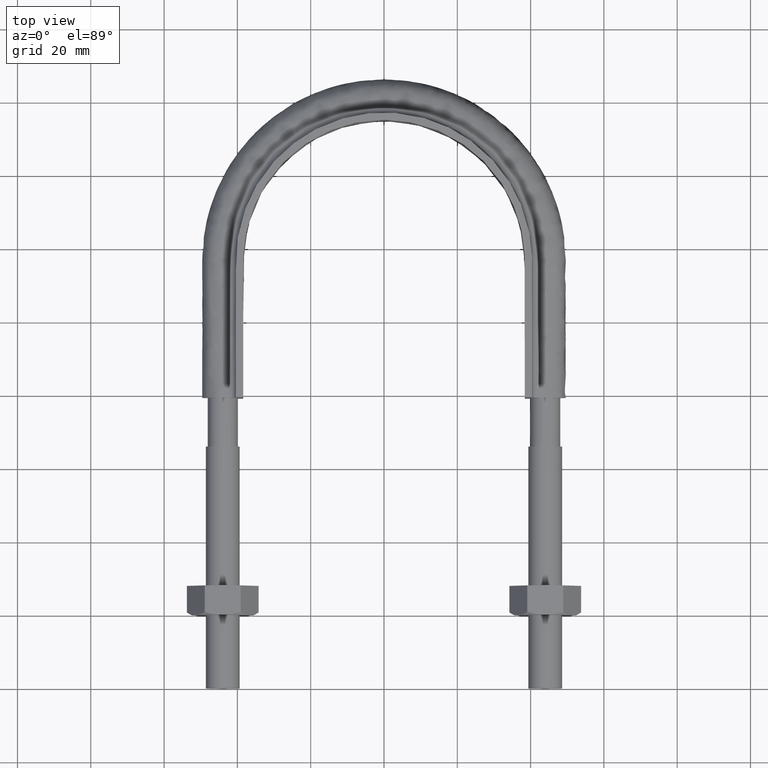
[diagram: clean part render]
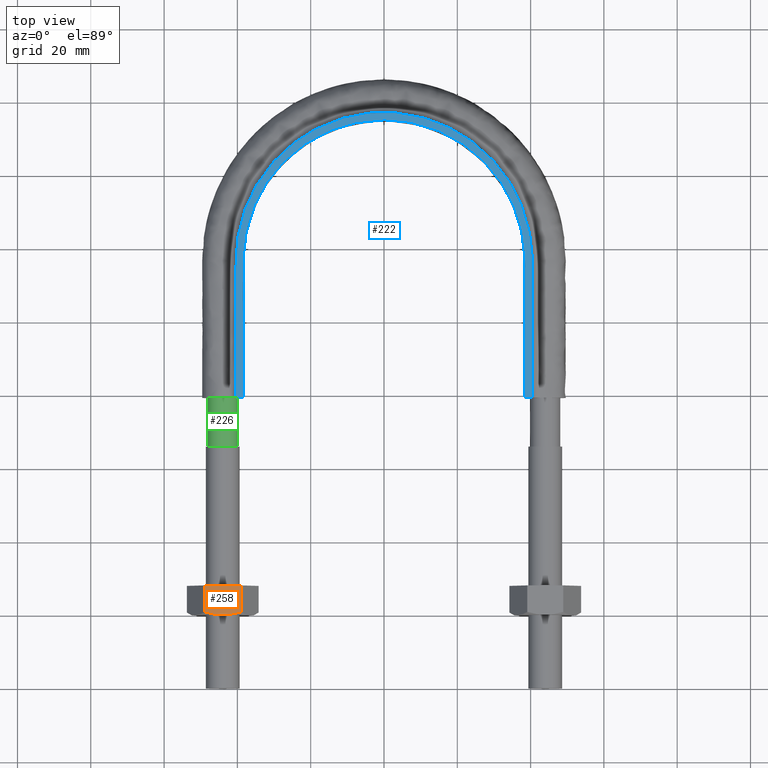
[diagram: same view with three faces highlighted in distinct colors, each labeled with its STEP entity id]
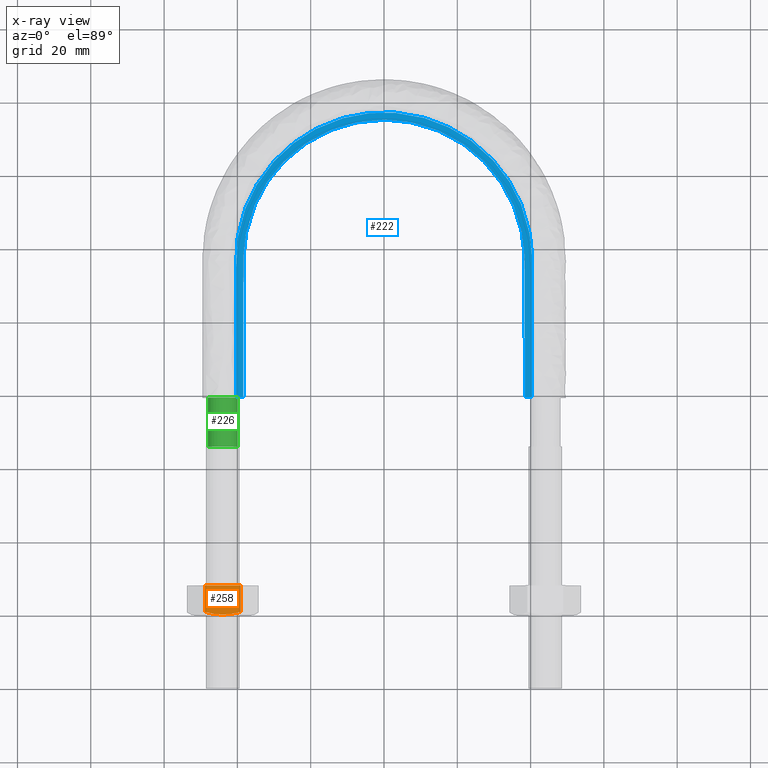
[diagram: x-ray of the same camera — body ghosted, the three highlighted faces saturated]
A machine part, top view with three faces highlighted in distinct colors.
The next image is the same camera in x-ray (body ghosted, the three faces saturated) — at least one of them is partly hidden behind the body in this view.
Their STEP definitions:

[orange] entity #258 — the highlighted planar face has unit normal (0, 0, -1).
#258 = ADVANCED_FACE( '', ( #386 ), #387, .F. );
#386 = FACE_OUTER_BOUND( '', #1383, .T. );
#387 = PLANE( '', #1384 );
#1383 = EDGE_LOOP( '', ( #1735, #1736, #1737, #1738, #1739 ) );
#1384 = AXIS2_PLACEMENT_3D( '', #1740, #1741, #1742 );
#1735 = ORIENTED_EDGE( '', *, *, #2089, .F. );
#1736 = ORIENTED_EDGE( '', *, *, #2084, .F. );
#1737 = ORIENTED_EDGE( '', *, *, #2090, .F. );
#1738 = ORIENTED_EDGE( '', *, *, #2076, .F. );
#1739 = ORIENTED_EDGE( '', *, *, #2091, .F. );
#1740 = CARTESIAN_POINT( '', ( -48.9074772881118, 28.0000000000000, 8.50000000000000 ) );
#1741 = DIRECTION( '', ( 5.55111512312578E-017, 6.12303176911189E-017, -1.00000000000000 ) );
#1742 = DIRECTION( '', ( -1.00000000000000, 2.44921270764475E-016, -5.55111512312578E-017 ) );
#2076 = EDGE_CURVE( '', #2278, #2280, #2281, .T. );
#2084 = EDGE_CURVE( '', #2292, #2241, #2294, .T. );
#2089 = EDGE_CURVE( '', #2241, #2299, #2300, .T. );
#2090 = EDGE_CURVE( '', #2280, #2292, #2301, .F. );
#2091 = EDGE_CURVE( '', #2299, #2278, #2302, .T. );
#2241 = VERTEX_POINT( '', #2762 );
#2278 = VERTEX_POINT( '', #2817 );
#2280 = VERTEX_POINT( '', #2819 );
#2281 = LINE( '', #2820, #2821 );
#2292 = VERTEX_POINT( '', #2842 );
#2294 = B_SPLINE_CURVE_WITH_KNOTS( '', 3, ( #2844, #2845, #2846, #2847, #2848, #2849 ), .UNSPECIFIED., .F., .F., ( 4, 2, 4 ), ( 4.83064900405481E-007, 0.00246777364959070, 0.00493506423428099 ), .UNSPECIFIED. );
#2299 = VERTEX_POINT( '', #2866 );
#2300 = B_SPLINE_CURVE_WITH_KNOTS( '', 3, ( #2867, #2868, #2869, #2870, #2871, #2872, #2873, #2874 ), .UNSPECIFIED., .F., .F., ( 4, 2, 2, 4 ), ( 0.00493506423428099, 0.00616384870526321, 0.00739263317624543, 0.00985020211820988 ), .UNSPECIFIED. );
#2301 = LINE( '', #2875, #2876 );
#2302 = LINE( '', #2877, #2878 );
#2762 = CARTESIAN_POINT( '', ( -44.0000000000000, 20.0000000000000, 8.50000000000000 ) );
#2817 = CARTESIAN_POINT( '', ( -48.8774993593029, 28.0000000000000, 8.50000000000000 ) );
#2819 = CARTESIAN_POINT( '', ( -39.1225006406971, 28.0000000000000, 8.50000000000000 ) );
#2820 = CARTESIAN_POINT( '', ( -39.1000000000000, 28.0000000000000, 8.50000000000000 ) );
#2821 = VECTOR( '', #3203, 1000.00000000000 );
#2842 = CARTESIAN_POINT( '', ( -39.1225006406971, 20.7505553499465, 8.50000000000000 ) );
#2844 = CARTESIAN_POINT( '', ( -39.1225006406971, 20.7505553499465, 8.50000000000000 ) );
#2845 = CARTESIAN_POINT( '', ( -39.9206053692589, 20.5212203171278, 8.50000000000000 ) );
#2846 = CARTESIAN_POINT( '', ( -40.7244743057427, 20.3324525365440, 8.50000000000000 ) );
#2847 = CARTESIAN_POINT( '', ( -42.3487653825441, 20.0714148540586, 8.50000000000000 ) );
#2848 = CARTESIAN_POINT( '', ( -43.1693090167582, 20.0000000000000, 8.50000000000000 ) );
#2849 = CARTESIAN_POINT( '', ( -44.0000000000000, 20.0000000000000, 8.50000000000000 ) );
#2866 = CARTESIAN_POINT( '', ( -48.8774993593029, 20.7505553499465, 8.50000000000000 ) );
#2867 = CARTESIAN_POINT( '', ( -44.0000000000000, 20.0000000000000, 8.50000000000000 ) );
#2868 = CARTESIAN_POINT( '', ( -44.4137089432134, 20.0000000000000, 8.50000000000000 ) );
#2869 = CARTESIAN_POINT( '', ( -44.8294869254275, 20.0177112081764, 8.50000000000000 ) );
#2870 = CARTESIAN_POINT( '', ( -45.6519999770223, 20.0863021936213, 8.50000000000000 ) );
#2871 = CARTESIAN_POINT( '', ( -46.0605223337831, 20.1371116504194, 8.50000000000000 ) );
#2872 = CARTESIAN_POINT( '', ( -47.2788691256670, 20.3331494013913, 8.50000000000000 ) );
#2873 = CARTESIAN_POINT( '', ( -48.0815000650892, 20.5218253127355, 8.49999999999999 ) );
#2874 = CARTESIAN_POINT( '', ( -48.8774993593029, 20.7505553499465, 8.50000000000000 ) );
#2875 = CARTESIAN_POINT( '', ( -39.1225006406971, 28.0000000000000, 8.50000000000000 ) );
#2876 = VECTOR( '', #3218, 1000.00000000000 );
#2877 = CARTESIAN_POINT( '', ( -48.8774993593029, 28.0000000000000, 8.50000000000000 ) );
#2878 = VECTOR( '', #3219, 1000.00000000000 );
#3203 = DIRECTION( '', ( 1.00000000000000, -2.44921270764475E-016, 5.55111512312578E-017 ) );
#3218 = DIRECTION( '', ( 2.44921270764475E-016, 1.00000000000000, 6.12303176911189E-017 ) );
#3219 = DIRECTION( '', ( 2.44921270764475E-016, 1.00000000000000, 6.12303176911189E-017 ) );

[blue] entity #222 — the highlighted planar face has unit normal (0, 0, 1).
#222 = ADVANCED_FACE( '', ( #304 ), #305, .T. );
#304 = FACE_OUTER_BOUND( '', #477, .T. );
#305 = PLANE( '', #478 );
#477 = EDGE_LOOP( '', ( #1503, #1504, #1505, #1506 ) );
#478 = AXIS2_PLACEMENT_3D( '', #1507, #1508, #1509 );
#1503 = ORIENTED_EDGE( '', *, *, #2005, .T. );
#1504 = ORIENTED_EDGE( '', *, *, #2014, .F. );
#1505 = ORIENTED_EDGE( '', *, *, #2009, .T. );
#1506 = ORIENTED_EDGE( '', *, *, #2015, .F. );
#1507 = CARTESIAN_POINT( '', ( 55.0000000000000, 179.300000000000, 12.5000000000000 ) );
#1508 = DIRECTION( '', ( 0.000000000000000, 0.000000000000000, 1.00000000000000 ) );
#1509 = DIRECTION( '', ( 1.22460635382238E-016, 1.00000000000000, 0.000000000000000 ) );
#2005 = EDGE_CURVE( '', #2160, #2157, #2161, .T. );
#2009 = EDGE_CURVE( '', #2167, #2168, #2169, .T. );
#2014 = EDGE_CURVE( '', #2167, #2157, #2176, .T. );
#2015 = EDGE_CURVE( '', #2160, #2168, #2177, .T. );
#2157 = VERTEX_POINT( '', #2416 );
#2160 = VERTEX_POINT( '', #2420 );
#2161 = LINE( '', #2421, #2422 );
#2167 = VERTEX_POINT( '', #2468 );
#2168 = VERTEX_POINT( '', #2469 );
#2169 = LINE( '', #2470, #2471 );
#2176 = B_SPLINE_CURVE_WITH_KNOTS( '', 3, ( #2526, #2527, #2528, #2529, #2530, #2531, #2532, #2533, #2534, #2535, #2536, #2537, #2538, #2539, #2540, #2541, #2542, #2543, #2544, #2545, #2546, #2547, #2548, #2549, #2550, #2551, #2552, #2553, #2554, #2555, #2556, #2557, #2558, #2559, #2560, #2561, #2562, #2563, #2564, #2565, #2566, #2567, #2568, #2569, #2570, #2571, #2572, #2573, #2574, #2575, #2576, #2577, #2578, #2579, #2580, #2581, #2582, #2583, #2584, #2585, #2586, #2587, #2588, #2589, #2590, #2591, #2592, #2593, #2594, #2595, #2596, #2597, #2598, #2599, #2600, #2601, #2602, #2603, #2604, #2605, #2606, #2607, #2608, #2609, #2610, #2611 ), .UNSPECIFIED., .F., .F., ( 4, 1, 2, 2, 2, 2, 2, 2, 2, 2, 2, 2, 2, 2, 2, 2, 2, 2, 2, 2, 2, 2, 2, 2, 2, 2, 2, 2, 2, 2, 2, 2, 2, 2, 2, 2, 2, 2, 2, 2, 2, 2, 1, 4 ), ( 1.38777878078145E-017, 0.0243379018108086, 0.0365068527162129, 0.0380279715793885, 0.0395490904425640, 0.0425913281689150, 0.0456335658952661, 0.0486758036216171, 0.0547602790743193, 0.0578025168006704, 0.0593236356638460, 0.0608447545270216, 0.0669292299797240, 0.0699714677060753, 0.0714925865692510, 0.0730137054324266, 0.0790981808851293, 0.0851826563378320, 0.0867037752010077, 0.0882248940641834, 0.0912671317905348, 0.0973516072432375, 0.0988727261064132, 0.100393844969589, 0.103436082695940, 0.109520558148643, 0.112562795874994, 0.115605033601346, 0.121689509054049, 0.123210627917224, 0.124731746780400, 0.127773984506751, 0.133858459959454, 0.136900697685805, 0.139942935412156, 0.146027410864859, 0.149069648591210, 0.150590767454386, 0.152111886317562, 0.155154124043913, 0.156675242907089, 0.158196361770264, 0.170365312675670, 0.194703214486481 ), .UNSPECIFIED. );
#2177 = B_SPLINE_CURVE_WITH_KNOTS( '', 3, ( #2612, #2613, #2614, #2615, #2616, #2617, #2618, #2619, #2620, #2621, #2622, #2623, #2624, #2625, #2626, #2627, #2628 ), .UNSPECIFIED., .F., .F., ( 4, 3, 1, 1, 1, 1, 1, 1, 1, 3, 4 ), ( 0.0698254364089772, 1.00000000000000, 1.50000000000000, 2.00000000000000, 3.00000000000000, 4.00000000000000, 5.00000000000000, 6.00000000000000, 6.50000000000000, 7.00000000000000, 7.93017456359102 ), .UNSPECIFIED. );
#2416 = CARTESIAN_POINT( '', ( -38.4000000000000, 79.3000000000000, 12.5000000000000 ) );
#2420 = CARTESIAN_POINT( '', ( -40.4000000000000, 79.3000000000000, 12.5000000000000 ) );
#2421 = CARTESIAN_POINT( '', ( -55.0000000000000, 79.3000000000000, 12.5000000000000 ) );
#2422 = VECTOR( '', #3087, 1000.00000000000 );
#2468 = CARTESIAN_POINT( '', ( 38.4000000000000, 79.3000000000000, 12.5000000000000 ) );
#2469 = CARTESIAN_POINT( '', ( 40.4000000000000, 79.3000000000000, 12.5000000000000 ) );
#2470 = CARTESIAN_POINT( '', ( -55.0000000000000, 79.3000000000000, 12.5000000000000 ) );
#2471 = VECTOR( '', #3089, 1000.00000000000 );
#2526 = CARTESIAN_POINT( '', ( 38.4000000000000, 79.3000000000000, 12.5000000000000 ) );
#2527 = CARTESIAN_POINT( '', ( 38.4000000000000, 87.4126339369367, 12.5000000000000 ) );
#2528 = CARTESIAN_POINT( '', ( 38.4000000000000, 99.5815848423418, 12.5000000000000 ) );
#2529 = CARTESIAN_POINT( '', ( 38.4000000000000, 111.750535747747, 12.5000000000000 ) );
#2530 = CARTESIAN_POINT( '', ( 38.4000000000000, 116.313892337274, 12.5000000000000 ) );
#2531 = CARTESIAN_POINT( '', ( 38.4027743076037, 116.821119409890, 12.5000000000000 ) );
#2532 = CARTESIAN_POINT( '', ( 38.3830167791574, 117.833863695679, 12.5000000000000 ) );
#2533 = CARTESIAN_POINT( '', ( 38.3628782069929, 118.339542614440, 12.5000000000000 ) );
#2534 = CARTESIAN_POINT( '', ( 38.2722040230530, 119.854534897766, 12.5000000000000 ) );
#2535 = CARTESIAN_POINT( '', ( 38.1714849409614, 120.861808856703, 12.5000000000000 ) );
#2536 = CARTESIAN_POINT( '', ( 37.8904277266655, 122.870977156620, 12.5000000000000 ) );
#2537 = CARTESIAN_POINT( '', ( 37.7100929165158, 123.872871722062, 12.5000000000000 ) );
#2538 = CARTESIAN_POINT( '', ( 37.2682777085645, 125.871178091473, 12.5000000000000 ) );
#2539 = CARTESIAN_POINT( '', ( 37.0058649207665, 126.869209598004, 12.5000000000000 ) );
#2540 = CARTESIAN_POINT( '', ( 36.1099085355124, 129.800428328994, 12.5000000000000 ) );
#2541 = CARTESIAN_POINT( '', ( 35.3652812283339, 131.689277860510, 12.5000000000000 ) );
#2542 = CARTESIAN_POINT( '', ( 34.0270721353677, 134.424482046524, 12.5000000000000 ) );
#2543 = CARTESIAN_POINT( '', ( 33.5438803306412, 135.319763573667, 12.5000000000000 ) );
#2544 = CARTESIAN_POINT( '', ( 32.7614856080269, 136.637153374160, 12.5000000000000 ) );
#2545 = CARTESIAN_POINT( '', ( 32.4911122498971, 137.072039439345, 12.5000000000000 ) );
#2546 = CARTESIAN_POINT( '', ( 31.9310694523164, 137.933259191099, 12.5000000000000 ) );
#2547 = CARTESIAN_POINT( '', ( 31.6416548483075, 138.359099832881, 12.5000000000000 ) );
#2548 = CARTESIAN_POINT( '', ( 30.1598500561493, 140.447972709778, 12.5000000000000 ) );
#2549 = CARTESIAN_POINT( '', ( 28.8544690281686, 142.006253780205, 12.5000000000000 ) );
#2550 = CARTESIAN_POINT( '', ( 26.7242269234556, 144.181725572989, 12.5000000000000 ) );
#2551 = CARTESIAN_POINT( '', ( 25.9852601970117, 144.879711605143, 12.5000000000000 ) );
#2552 = CARTESIAN_POINT( '', ( 24.8327554866620, 145.885251295440, 12.5000000000000 ) );
#2553 = CARTESIAN_POINT( '', ( 24.4412331318476, 146.213513644747, 12.5000000000000 ) );
#2554 = CARTESIAN_POINT( '', ( 23.6432116170529, 146.855950622699, 12.5000000000000 ) );
#2555 = CARTESIAN_POINT( '', ( 23.2357844532912, 147.170799679600, 12.5000000000000 ) );
#2556 = CARTESIAN_POINT( '', ( 21.1728995967700, 148.699717522120, 12.5000000000000 ) );
#2557 = CARTESIAN_POINT( '', ( 19.4461214786923, 149.775116348712, 12.5000000000000 ) );
#2558 = CARTESIAN_POINT( '', ( 15.8424012951626, 151.635807157406, 12.5000000000000 ) );
#2559 = CARTESIAN_POINT( '', ( 13.9663663217123, 152.422851581443, 12.5000000000000 ) );
#2560 = CARTESIAN_POINT( '', ( 11.5271708169511, 153.224762065559, 12.5000000000000 ) );
#2561 = CARTESIAN_POINT( '', ( 11.0351210878857, 153.375746188077, 12.5000000000000 ) );
#2562 = CARTESIAN_POINT( '', ( 10.0502423640907, 153.656786422983, 12.5000000000000 ) );
#2563 = CARTESIAN_POINT( '', ( 9.55637016529616, 153.787194835959, 12.5000000000000 ) );
#2564 = CARTESIAN_POINT( '', ( 8.07051418322854, 154.148502213831, 12.5000000000000 ) );
#2565 = CARTESIAN_POINT( '', ( 7.07429985999567, 154.349545743025, 12.5000000000000 ) );
#2566 = CARTESIAN_POINT( '', ( 4.06886690428272, 154.834187354574, 12.5000000000000 ) );
#2567 = CARTESIAN_POINT( '', ( 2.04300780873463, 155.000351662539, 12.5000000000000 ) );
#2568 = CARTESIAN_POINT( '', ( -0.518810472446337, 154.999911391897, 12.5000000000000 ) );
#2569 = CARTESIAN_POINT( '', ( -1.03384934041144, 154.989267949138, 12.5000000000000 ) );
#2570 = CARTESIAN_POINT( '', ( -2.05999227101044, 154.947123645522, 12.5000000000000 ) );
#2571 = CARTESIAN_POINT( '', ( -2.57100025916384, 154.915690794062, 12.5000000000000 ) );
#2572 = CARTESIAN_POINT( '', ( -4.09798525337136, 154.791070625936, 12.5000000000000 ) );
#2573 = CARTESIAN_POINT( '', ( -5.10793619044581, 154.667626472699, 12.5000000000000 ) );
#2574 = CARTESIAN_POINT( '', ( -8.11438462156152, 154.179780837088, 12.5000000000000 ) );
#2575 = CARTESIAN_POINT( '', ( -10.0876738344831, 153.698850790018, 12.5000000000000 ) );
#2576 = CARTESIAN_POINT( '', ( -13.0003199951632, 152.740024822744, 12.5000000000000 ) );
#2577 = CARTESIAN_POINT( '', ( -13.9672170977489, 152.378727202230, 12.5000000000000 ) );
#2578 = CARTESIAN_POINT( '', ( -15.8546719802247, 151.585984907772, 12.5000000000000 ) );
#2579 = CARTESIAN_POINT( '', ( -16.7774313079130, 151.154197465974, 12.5000000000000 ) );
#2580 = CARTESIAN_POINT( '', ( -19.4833402127084, 149.753490344414, 12.5000000000000 ) );
#2581 = CARTESIAN_POINT( '', ( -21.2036319794211, 148.678400373100, 12.5000000000000 ) );
#2582 = CARTESIAN_POINT( '', ( -23.2504143165324, 147.159581599005, 12.5000000000000 ) );
#2583 = CARTESIAN_POINT( '', ( -23.6545765017691, 146.847044416500, 12.5000000000000 ) );
#2584 = CARTESIAN_POINT( '', ( -24.4524162332021, 146.204260920726, 12.5000000000000 ) );
#2585 = CARTESIAN_POINT( '', ( -24.8469576925091, 145.873240647292, 12.5000000000000 ) );
#2586 = CARTESIAN_POINT( '', ( -26.0068899055370, 144.860053871449, 12.5000000000000 ) );
#2587 = CARTESIAN_POINT( '', ( -26.7486892538447, 144.158088969383, 12.5000000000000 ) );
#2588 = CARTESIAN_POINT( '', ( -28.8823748109424, 141.974991317251, 12.5000000000000 ) );
#2589 = CARTESIAN_POINT( '', ( -30.1833131714203, 140.417299289571, 12.5000000000000 ) );
#2590 = CARTESIAN_POINT( '', ( -31.9490860628642, 137.924495268019, 12.5000000000000 ) );
#2591 = CARTESIAN_POINT( '', ( -32.5065492449491, 137.067357440084, 12.5000000000000 ) );
#2592 = CARTESIAN_POINT( '', ( -33.5561706257858, 135.298108495221, 12.5000000000000 ) );
#2593 = CARTESIAN_POINT( '', ( -34.0419906193421, 134.396127879279, 12.5000000000000 ) );
#2594 = CARTESIAN_POINT( '', ( -35.3824842141314, 131.649725427965, 12.5000000000000 ) );
#2595 = CARTESIAN_POINT( '', ( -36.1236281599902, 129.761104672605, 12.5000000000000 ) );
#2596 = CARTESIAN_POINT( '', ( -37.0127103209050, 126.843968621002, 12.5000000000000 ) );
#2597 = CARTESIAN_POINT( '', ( -37.2717329928220, 125.857467876968, 12.5000000000000 ) );
#2598 = CARTESIAN_POINT( '', ( -37.6030425852182, 124.356073245166, 12.5000000000000 ) );
#2599 = CARTESIAN_POINT( '', ( -37.7041051856698, 123.850877289073, 12.5000000000000 ) );
#2600 = CARTESIAN_POINT( '', ( -37.8853786337736, 122.841026729264, 12.5000000000000 ) );
#2601 = CARTESIAN_POINT( '', ( -37.9657364586178, 122.335935616760, 12.5000000000000 ) );
#2602 = CARTESIAN_POINT( '', ( -38.1763323138402, 120.820170574568, 12.5000000000000 ) );
#2603 = CARTESIAN_POINT( '', ( -38.2761686057871, 119.809006164410, 12.5000000000000 ) );
#2604 = CARTESIAN_POINT( '', ( -38.3651025185759, 118.291278313188, 12.5000000000000 ) );
#2605 = CARTESIAN_POINT( '', ( -38.3845912942189, 117.785205181846, 12.5000000000000 ) );
#2606 = CARTESIAN_POINT( '', ( -38.4030301939459, 116.772727562863, 12.5000000000000 ) );
#2607 = CARTESIAN_POINT( '', ( -38.4000000000000, 116.266291126151, 12.5000000000000 ) );
#2608 = CARTESIAN_POINT( '', ( -38.4000000000000, 111.708803179091, 12.5000000000000 ) );
#2609 = CARTESIAN_POINT( '', ( -38.4000000000000, 99.5555019869321, 12.5000000000000 ) );
#2610 = CARTESIAN_POINT( '', ( -38.4000000000000, 87.4022007947728, 12.5000000000000 ) );
#2611 = CARTESIAN_POINT( '', ( -38.4000000000000, 79.3000000000000, 12.5000000000000 ) );
#2612 = CARTESIAN_POINT( '', ( -40.4000000000000, 79.3000000000000, 12.5000000000000 ) );
#2613 = CARTESIAN_POINT( '', ( -40.4000000000000, 91.7333333333333, 12.5000000000000 ) );
#2614 = CARTESIAN_POINT( '', ( -40.4000000000000, 104.166666666667, 12.5000000000000 ) );
#2615 = CARTESIAN_POINT( '', ( -40.4000000000000, 116.600000000000, 12.5000000000000 ) );
#2616 = CARTESIAN_POINT( '', ( -40.4000000000000, 120.116528833197, 12.5000000000000 ) );
#2617 = CARTESIAN_POINT( '', ( -39.4544182095027, 127.175179019489, 12.5000000000000 ) );
#2618 = CARTESIAN_POINT( '', ( -34.0439198137652, 140.322280291266, 12.5000000000000 ) );
#2619 = CARTESIAN_POINT( '', ( -21.1440253219688, 153.223582281160, 12.5000000000000 ) );
#2620 = CARTESIAN_POINT( '', ( 3.42027005574731E-014, 158.888208859420, 12.5000000000000 ) );
#2621 = CARTESIAN_POINT( '', ( 21.1440253219689, 153.223582281160, 12.5000000000000 ) );
#2622 = CARTESIAN_POINT( '', ( 34.0439198137653, 140.322280291266, 12.5000000000000 ) );
#2623 = CARTESIAN_POINT( '', ( 39.4544182095027, 127.175179019489, 12.5000000000000 ) );
#2624 = CARTESIAN_POINT( '', ( 40.4000000000000, 120.116528833197, 12.5000000000000 ) );
#2625 = CARTESIAN_POINT( '', ( 40.4000000000000, 116.600000000000, 12.5000000000000 ) );
#2626 = CARTESIAN_POINT( '', ( 40.4000000000000, 104.166666666667, 12.5000000000000 ) );
#2627 = CARTESIAN_POINT( '', ( 40.4000000000000, 91.7333333333333, 12.5000000000000 ) );
#2628 = CARTESIAN_POINT( '', ( 40.4000000000000, 79.3000000000000, 12.5000000000000 ) );
#3087 = DIRECTION( '', ( 1.00000000000000, -1.22460635382238E-016, 0.000000000000000 ) );
#3089 = DIRECTION( '', ( 1.00000000000000, -1.22460635382238E-016, 0.000000000000000 ) );

[green] entity #226 — the highlighted cylindrical surface (bore or boss wall) has radius 4.1 mm, axis along (0, 1, 0).
#226 = ADVANCED_FACE( '', ( #313, #314 ), #315, .T. );
#313 = FACE_OUTER_BOUND( '', #1161, .T. );
#314 = FACE_OUTER_BOUND( '', #1162, .T. );
#315 = CYLINDRICAL_SURFACE( '', #1163, 4.10000000000000 );
#1161 = EDGE_LOOP( '', ( #1523, #1524, #1525, #1526, #1527, #1528, #1529 ) );
#1162 = EDGE_LOOP( '', ( #1530 ) );
#1163 = AXIS2_PLACEMENT_3D( '', #1531, #1532, #1533 );
#1523 = ORIENTED_EDGE( '', *, *, #2017, .T. );
#1524 = ORIENTED_EDGE( '', *, *, #2018, .T. );
#1525 = ORIENTED_EDGE( '', *, *, #2019, .T. );
#1526 = ORIENTED_EDGE( '', *, *, #2020, .T. );
#1527 = ORIENTED_EDGE( '', *, *, #2021, .T. );
#1528 = ORIENTED_EDGE( '', *, *, #2022, .T. );
#1529 = ORIENTED_EDGE( '', *, *, #2023, .T. );
#1530 = ORIENTED_EDGE( '', *, *, #2024, .T. );
#1531 = CARTESIAN_POINT( '', ( -44.0000000000000, 79.3000000000000, 2.34512116756985E-015 ) );
#1532 = DIRECTION( '', ( 2.44921270764475E-016, 1.00000000000000, 6.12303176911189E-017 ) );
#1533 = DIRECTION( '', ( 1.00000000000000, -2.44921270764475E-016, -7.49830360911069E-033 ) );
#2017 = EDGE_CURVE( '', #2179, #2180, #2181, .T. );
#2018 = EDGE_CURVE( '', #2180, #2182, #2183, .T. );
#2019 = EDGE_CURVE( '', #2182, #2184, #2185, .T. );
#2020 = EDGE_CURVE( '', #2184, #2186, #2187, .T. );
#2021 = EDGE_CURVE( '', #2186, #2188, #2189, .T. );
#2022 = EDGE_CURVE( '', #2188, #2190, #2191, .T. );
#2023 = EDGE_CURVE( '', #2190, #2179, #2192, .T. );
#2024 = EDGE_CURVE( '', #2193, #2193, #2194, .F. );
#2179 = VERTEX_POINT( '', #2646 );
#2180 = VERTEX_POINT( '', #2647 );
#2181 = CIRCLE( '', #2648, 4.10000000000000 );
#2182 = VERTEX_POINT( '', #2649 );
#2183 = CIRCLE( '', #2650, 4.10000000000000 );
#2184 = VERTEX_POINT( '', #2651 );
#2185 = CIRCLE( '', #2652, 4.10000000000000 );
#2186 = VERTEX_POINT( '', #2653 );
#2187 = CIRCLE( '', #2654, 4.10000000000000 );
#2188 = VERTEX_POINT( '', #2655 );
#2189 = CIRCLE( '', #2656, 4.10000000000000 );
#2190 = VERTEX_POINT( '', #2657 );
#2191 = CIRCLE( '', #2658, 4.10000000000000 );
#2192 = CIRCLE( '', #2659, 4.10000000000000 );
#2193 = VERTEX_POINT( '', #2660 );
#2194 = CIRCLE( '', #2661, 4.10000000000000 );
#2646 = CARTESIAN_POINT( '', ( -39.9000000000000, 79.3000000000000, 5.26458725159965E-014 ) );
#2647 = CARTESIAN_POINT( '', ( -41.4436918124017, 79.3000000000000, 3.20550907813692 ) );
#2648 = AXIS2_PLACEMENT_3D( '', #3092, #3093, #3094 );
#2649 = CARTESIAN_POINT( '', ( -44.9123358292510, 79.3000000000000, 3.99720443993860 ) );
#2650 = AXIS2_PLACEMENT_3D( '', #3095, #3096, #3097 );
#2651 = CARTESIAN_POINT( '', ( -47.6939723583999, 79.3000000000000, 1.77892333038206 ) );
#2652 = AXIS2_PLACEMENT_3D( '', #3098, #3099, #3100 );
#2653 = CARTESIAN_POINT( '', ( -47.6939723583999, 79.3000000000000, -1.77892333038199 ) );
#2654 = AXIS2_PLACEMENT_3D( '', #3101, #3102, #3103 );
#2655 = CARTESIAN_POINT( '', ( -44.9123358292208, 79.3000000000000, -3.99720443994549 ) );
#2656 = AXIS2_PLACEMENT_3D( '', #3104, #3105, #3106 );
#2657 = CARTESIAN_POINT( '', ( -41.4436918123794, 79.3000000000000, -3.20550907811908 ) );
#2658 = AXIS2_PLACEMENT_3D( '', #3107, #3108, #3109 );
#2659 = AXIS2_PLACEMENT_3D( '', #3110, #3111, #3112 );
#2660 = CARTESIAN_POINT( '', ( -39.9000000000000, 66.0000000000000, 1.53075794227797E-015 ) );
#2661 = AXIS2_PLACEMENT_3D( '', #3113, #3114, #3115 );
#3092 = CARTESIAN_POINT( '', ( -44.0000000000000, 79.3000000000000, 2.34512116756985E-015 ) );
#3093 = DIRECTION( '', ( -2.44921270764475E-016, -1.00000000000000, -6.12303176911189E-017 ) );
#3094 = DIRECTION( '', ( 1.00000000000000, -2.44921270764475E-016, -1.04341724267742E-032 ) );
#3095 = CARTESIAN_POINT( '', ( -44.0000000000000, 79.3000000000000, 2.34512116756985E-015 ) );
#3096 = DIRECTION( '', ( -2.44921270764475E-016, -1.00000000000000, -6.12303176911189E-017 ) );
#3097 = DIRECTION( '', ( 1.00000000000000, -2.44921270764475E-016, -1.04341724267742E-032 ) );
#3098 = CARTESIAN_POINT( '', ( -44.0000000000000, 79.3000000000000, 2.34512116756985E-015 ) );
#3099 = DIRECTION( '', ( -2.44921270764475E-016, -1.00000000000000, -6.12303176911189E-017 ) );
#3100 = DIRECTION( '', ( 1.00000000000000, -2.44921270764475E-016, -1.04341724267742E-032 ) );
#3101 = CARTESIAN_POINT( '', ( -44.0000000000000, 79.3000000000000, 2.34512116756985E-015 ) );
#3102 = DIRECTION( '', ( -2.44921270764475E-016, -1.00000000000000, -6.12303176911189E-017 ) );
#3103 = DIRECTION( '', ( 1.00000000000000, -2.44921270764475E-016, -1.04341724267742E-032 ) );
#3104 = CARTESIAN_POINT( '', ( -44.0000000000000, 79.3000000000000, 2.34512116756985E-015 ) );
#3105 = DIRECTION( '', ( -2.44921270764475E-016, -1.00000000000000, -6.12303176911189E-017 ) );
#3106 = DIRECTION( '', ( 1.00000000000000, -2.44921270764475E-016, -1.04341724267742E-032 ) );
#3107 = CARTESIAN_POINT( '', ( -44.0000000000000, 79.3000000000000, 2.34512116756985E-015 ) );
#3108 = DIRECTION( '', ( -2.44921270764475E-016, -1.00000000000000, -6.12303176911189E-017 ) );
#3109 = DIRECTION( '', ( 1.00000000000000, -2.44921270764475E-016, -1.04341724267742E-032 ) );
#3110 = CARTESIAN_POINT( '', ( -44.0000000000000, 79.3000000000000, 2.34512116756985E-015 ) );
#3111 = DIRECTION( '', ( -2.44921270764475E-016, -1.00000000000000, -6.12303176911189E-017 ) );
#3112 = DIRECTION( '', ( 1.00000000000000, -2.44921270764475E-016, -1.04341724267742E-032 ) );
#3113 = CARTESIAN_POINT( '', ( -44.0000000000000, 66.0000000000000, 1.53075794227797E-015 ) );
#3114 = DIRECTION( '', ( -2.44921270764476E-016, -1.00000000000000, -6.12303176911189E-017 ) );
#3115 = DIRECTION( '', ( 1.00000000000000, -2.44921270764476E-016, 0.000000000000000 ) );